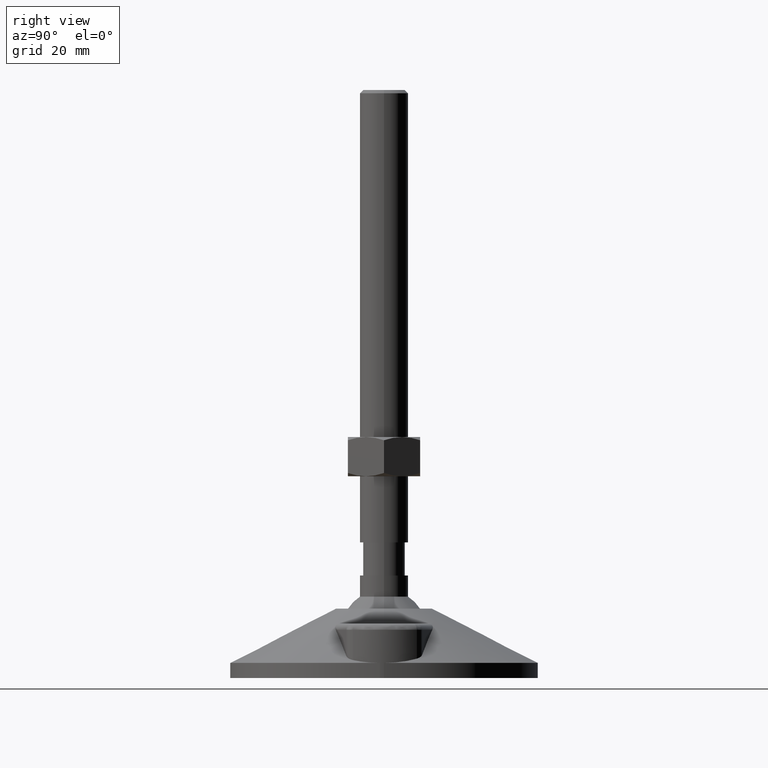
[diagram: clean part render]
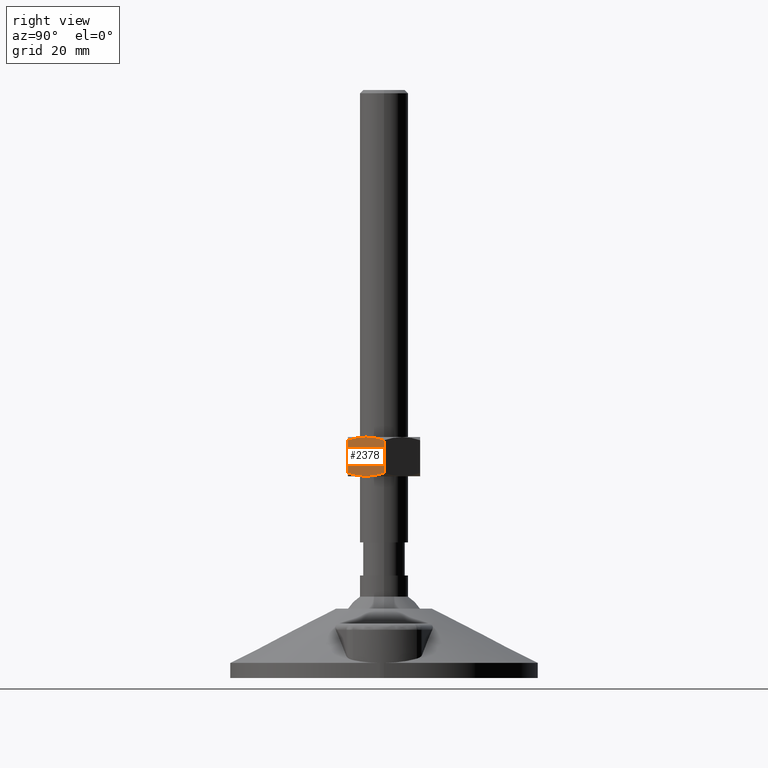
[diagram: same view with one face highlighted and labeled with its STEP entity id]
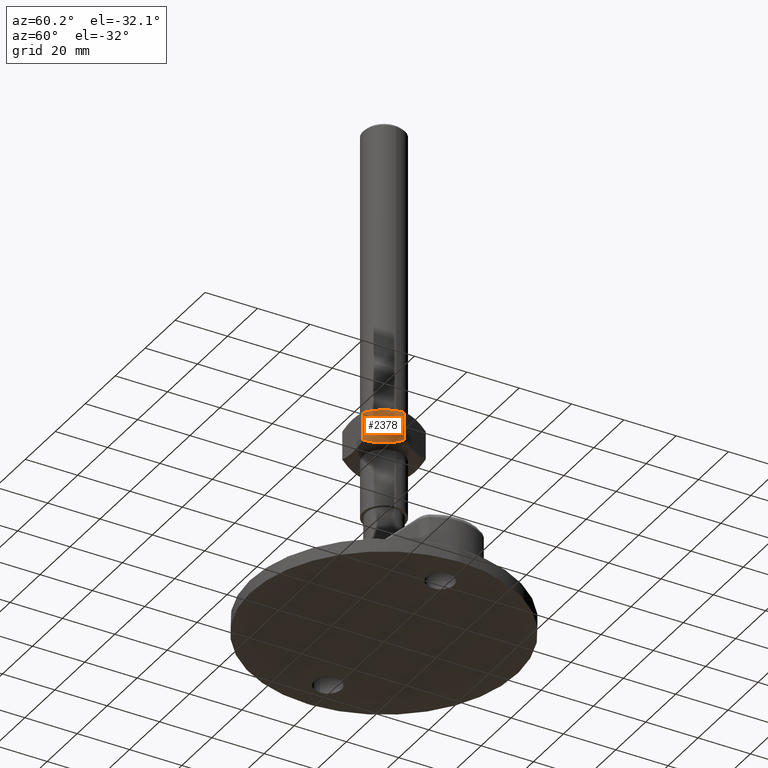
[diagram: same view with one face highlighted and labeled with its STEP entity id]
A machine part, right view. The second image highlights one B-rep face of the part: STEP entity #2378.
A second angle (auxiliary view) of the same face is appended — the face is thin or edge-on in the first view.
In plain terms, the highlighted planar face has unit normal (0.866, -0.5, -0).
Its self-contained STEP definition (entity closure, byte-faithful):
#1740=CARTESIAN_POINT('',(10.392304845413491,-6.000002062634849,79.917471353212406));
#1741=VERTEX_POINT('',#1740);
#1793=CARTESIAN_POINT('',(6.928203230275813,-12.000002034971658,78.845674412343598));
#1794=VERTEX_POINT('',#1793);
#1804=CARTESIAN_POINT('',(6.928203230275813,-12.000002034971658,78.845674412343598));
#1805=CARTESIAN_POINT('',(7.566951332883946,-10.893657877534679,79.214455835487044));
#1806=CARTESIAN_POINT('',(8.486552743383754,-9.300861522730884,79.636968141620329));
#1807=CARTESIAN_POINT('',(9.653251102151899,-7.280080694608841,79.883350139586966));
#1808=CARTESIAN_POINT('',(10.160322271982068,-6.401807666288732,79.917471342841438));
#1809=CARTESIAN_POINT('',(10.392304845413491,-6.000002062634849,79.917471353212406));
#1810=B_SPLINE_CURVE_WITH_KNOTS('',3,(#1804,#1805,#1806,#1807,#1808,#1809),.UNSPECIFIED.,.F.,.U.,(4,1,1,4),(0.0,3.992271418963572,5.642176844354092,7.034326547378422),.UNSPECIFIED.);
#1811=EDGE_CURVE('',#1794,#1741,#1810,.T.);
#1908=CARTESIAN_POINT('',(13.856406460549124,-0.000002034971658,78.845674722060195));
#1909=VERTEX_POINT('',#1908);
#1910=CARTESIAN_POINT('',(10.392304845413491,-6.000002062634849,79.917471353212406));
#1911=CARTESIAN_POINT('',(10.661907300835082,-5.533036911999261,79.917471365264120));
#1912=CARTESIAN_POINT('',(11.218682302260959,-4.568674320019454,79.873849325011562));
#1913=CARTESIAN_POINT('',(12.383848493457663,-2.550547270530842,79.599722937491080));
#1914=CARTESIAN_POINT('',(13.265261114369878,-1.023895818023448,79.186972625566725));
#1915=CARTESIAN_POINT('',(13.856406460550261,-0.000002034971658,78.845674722060195));
#1916=B_SPLINE_CURVE_WITH_KNOTS('',3,(#1910,#1911,#1912,#1913,#1914,#1915),.UNSPECIFIED.,.F.,.U.,(4,1,1,4),(0.0,1.618012492887264,3.340103741279386,7.034330249539909),.UNSPECIFIED.);
#1917=EDGE_CURVE('',#1741,#1909,#1916,.T.);
#2069=CARTESIAN_POINT('',(10.392304845413491,-6.000001727110430,66.917471353212406));
#2070=VERTEX_POINT('',#2069);
#2078=CARTESIAN_POINT('',(6.928203230275813,-12.000001754772711,67.989268031576486));
#2079=VERTEX_POINT('',#2078);
#2080=CARTESIAN_POINT('',(6.928203230275813,-12.000001754772711,67.989268031576486));
#2081=CARTESIAN_POINT('',(7.566951326019535,-10.893657590188923,67.620486653260215));
#2082=CARTESIAN_POINT('',(8.486552727695198,-9.300861228859503,67.197974413416361));
#2083=CARTESIAN_POINT('',(9.653251087227545,-7.280080386695772,66.951592503966296));
#2084=CARTESIAN_POINT('',(10.160322263471016,-6.401807345505404,66.917471342841438));
#2085=CARTESIAN_POINT('',(10.392304845413491,-6.000001727110430,66.917471353212406));
#2086=B_SPLINE_CURVE_WITH_KNOTS('',3,(#2080,#2081,#2082,#2083,#2084,#2085),.UNSPECIFIED.,.F.,.U.,(4,1,1,4),(0.0,3.992271389775870,5.642176802470210,7.034326556610823),.UNSPECIFIED.);
#2087=EDGE_CURVE('',#2079,#2070,#2086,.T.);
#2117=CARTESIAN_POINT('',(13.856406460551170,-0.000001754772711,67.989268341291265));
#2118=VERTEX_POINT('',#2117);
#2128=CARTESIAN_POINT('',(10.392304845413491,-6.000001727110430,66.917471353212406));
#2129=CARTESIAN_POINT('',(10.661907291975922,-5.533036591819837,66.917471365264120));
#2130=CARTESIAN_POINT('',(11.218682284541501,-4.568674017437843,66.961093455075044));
#2131=CARTESIAN_POINT('',(12.383848476973526,-2.550546979959108,67.235219953522048));
#2132=CARTESIAN_POINT('',(13.265261106435219,-1.023895533951873,67.647970365316198));
#2133=CARTESIAN_POINT('',(13.856406460551170,-0.000001754772711,67.989268341291265));
#2134=B_SPLINE_CURVE_WITH_KNOTS('',3,(#2128,#2129,#2130,#2131,#2132,#2133),.UNSPECIFIED.,.F.,.U.,(4,1,1,4),(0.0,1.618012439728017,3.340103688112859,7.034330258773051),.UNSPECIFIED.);
#2135=EDGE_CURVE('',#2070,#2118,#2134,.T.);
#2347=CARTESIAN_POINT('',(13.856406460551170,-0.000002034972250,78.845674722059840));
#2348=DIRECTION('',(0.0,0.000000025809555,-1.000000000000000));
#2349=VECTOR('',#2348,10.856406380768963);
#2350=LINE('',#2347,#2349);
#2351=EDGE_CURVE('',#1909,#2118,#2350,.T.);
#2360=CARTESIAN_POINT('',(13.856406460551170,-0.000002062634849,79.917471508069340));
#2361=DIRECTION('',(0.866025403784438,-0.500000000000002,-0.000000012904778));
#2362=DIRECTION('',(-0.500000000000002,-0.866025403784437,-0.000000022351731));
#2363=AXIS2_PLACEMENT_3D('',#2360,#2361,#2362);
#2364=PLANE('',#2363);
#2365=ORIENTED_EDGE('',*,*,#1811,.F.);
#2366=CARTESIAN_POINT('',(6.928203230275813,-12.000002034972249,78.845674412343897));
#2367=DIRECTION('',(0.0,0.000000025809555,-1.000000000000000));
#2368=VECTOR('',#2367,10.856406380767812);
#2369=LINE('',#2366,#2368);
#2370=EDGE_CURVE('',#1794,#2079,#2369,.T.);
#2371=ORIENTED_EDGE('',*,*,#2370,.T.);
#2372=ORIENTED_EDGE('',*,*,#2087,.T.);
#2373=ORIENTED_EDGE('',*,*,#2135,.T.);
#2374=ORIENTED_EDGE('',*,*,#2351,.F.);
#2375=ORIENTED_EDGE('',*,*,#1917,.F.);
#2376=EDGE_LOOP('',(#2365,#2371,#2372,#2373,#2374,#2375));
#2377=FACE_OUTER_BOUND('',#2376,.T.);
#2378=ADVANCED_FACE('',(#2377),#2364,.T.);